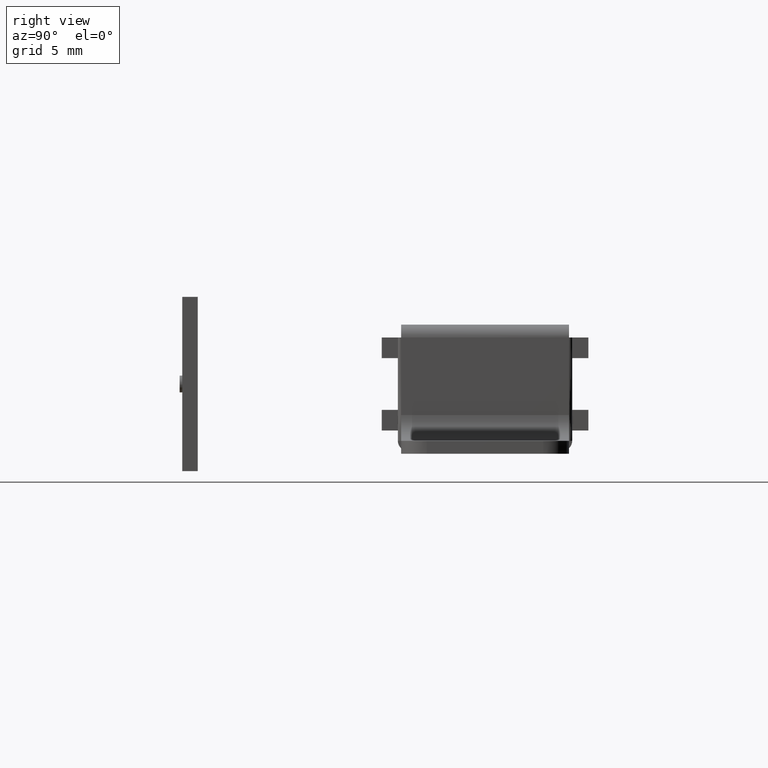
[diagram: clean part render]
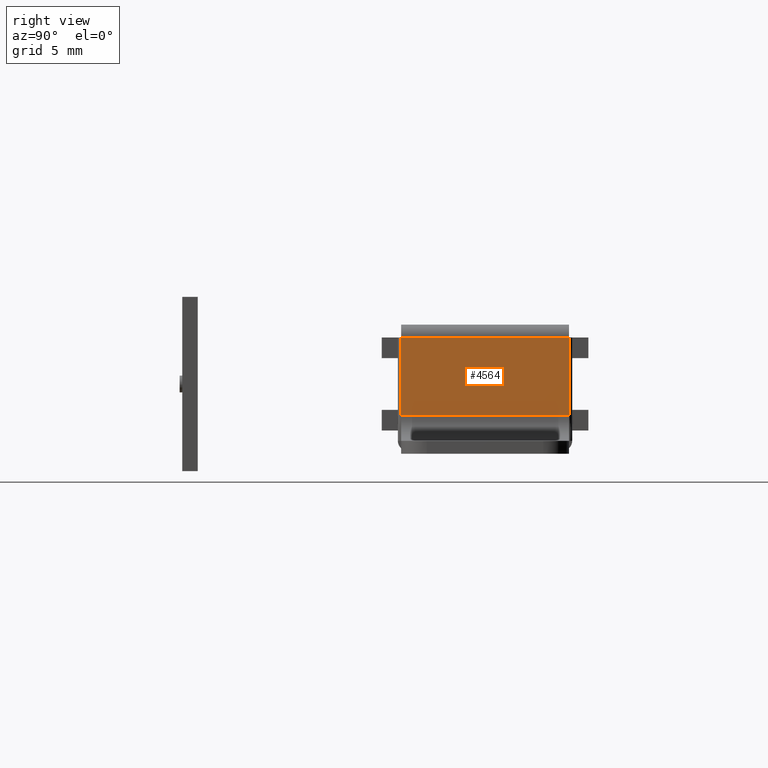
[diagram: same view with one face highlighted and labeled with its STEP entity id]
A machine part, right view. The second image highlights one B-rep face of the part: STEP entity #4564.
In plain terms, the highlighted face is a freeform B-spline surface patch.
Its self-contained STEP definition (entity closure, byte-faithful):
#1971=CARTESIAN_POINT('',(14.0,-6.500000000000000,9.0));
#1972=VERTEX_POINT('',#1971);
#2008=CARTESIAN_POINT('',(14.0,-6.500000000000000,3.0));
#2009=VERTEX_POINT('',#2008);
#2015=CARTESIAN_POINT('',(14.0,-6.500000000000000,9.0));
#2016=CARTESIAN_POINT('',(14.0,-6.500000000000000,3.0));
#2017=QUASI_UNIFORM_CURVE('',1,(#2015,#2016),.UNSPECIFIED.,.F.,.U.);
#2018=EDGE_CURVE('',#1972,#2009,#2017,.T.);
#2175=CARTESIAN_POINT('',(14.0,6.500000000000000,3.0));
#2176=VERTEX_POINT('',#2175);
#2177=CARTESIAN_POINT('',(14.0,6.500000000000000,9.0));
#2178=VERTEX_POINT('',#2177);
#2179=CARTESIAN_POINT('',(14.0,6.500000000000000,3.0));
#2180=CARTESIAN_POINT('',(14.0,6.500000000000000,9.0));
#2181=QUASI_UNIFORM_CURVE('',1,(#2179,#2180),.UNSPECIFIED.,.F.,.U.);
#2182=EDGE_CURVE('',#2176,#2178,#2181,.T.);
#3183=CARTESIAN_POINT('',(14.0,6.500000000000000,9.0));
#3184=CARTESIAN_POINT('',(14.0,-6.500000000000000,9.0));
#3185=QUASI_UNIFORM_CURVE('',1,(#3183,#3184),.UNSPECIFIED.,.F.,.U.);
#3186=EDGE_CURVE('',#2178,#1972,#3185,.T.);
#4549=CARTESIAN_POINT('',(14.0,-7.149349974803478,9.299699988370836));
#4550=CARTESIAN_POINT('',(14.0,-7.149349974803478,2.700299850696623));
#4551=CARTESIAN_POINT('',(14.0,7.149350323490650,9.299699988370836));
#4552=CARTESIAN_POINT('',(14.0,7.149350323490650,2.700299850696623));
#4553=B_SPLINE_SURFACE_WITH_KNOTS('',1,1,((#4549,#4551),(#4550,#4552)),.UNSPECIFIED.,.F.,.F.,.U.,(2,2),(2,2),(0.0,6.599400137674213),(0.0,14.298700298294129),.UNSPECIFIED.);
#4554=CARTESIAN_POINT('',(14.0,-6.500000000000000,3.0));
#4555=CARTESIAN_POINT('',(14.0,6.500000000000000,3.0));
#4556=QUASI_UNIFORM_CURVE('',1,(#4554,#4555),.UNSPECIFIED.,.F.,.U.);
#4557=EDGE_CURVE('',#2009,#2176,#4556,.T.);
#4558=ORIENTED_EDGE('',*,*,#4557,.T.);
#4559=ORIENTED_EDGE('',*,*,#2182,.T.);
#4560=ORIENTED_EDGE('',*,*,#3186,.T.);
#4561=ORIENTED_EDGE('',*,*,#2018,.T.);
#4562=EDGE_LOOP('',(#4558,#4559,#4560,#4561));
#4563=FACE_OUTER_BOUND('',#4562,.T.);
#4564=ADVANCED_FACE('',(#4563),#4553,.T.);